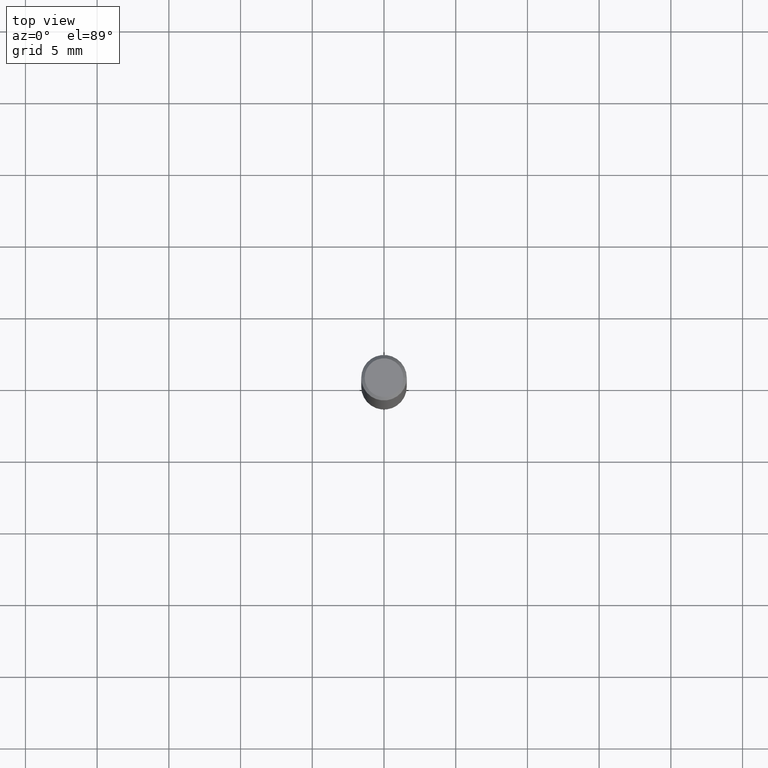
[diagram: clean part render]
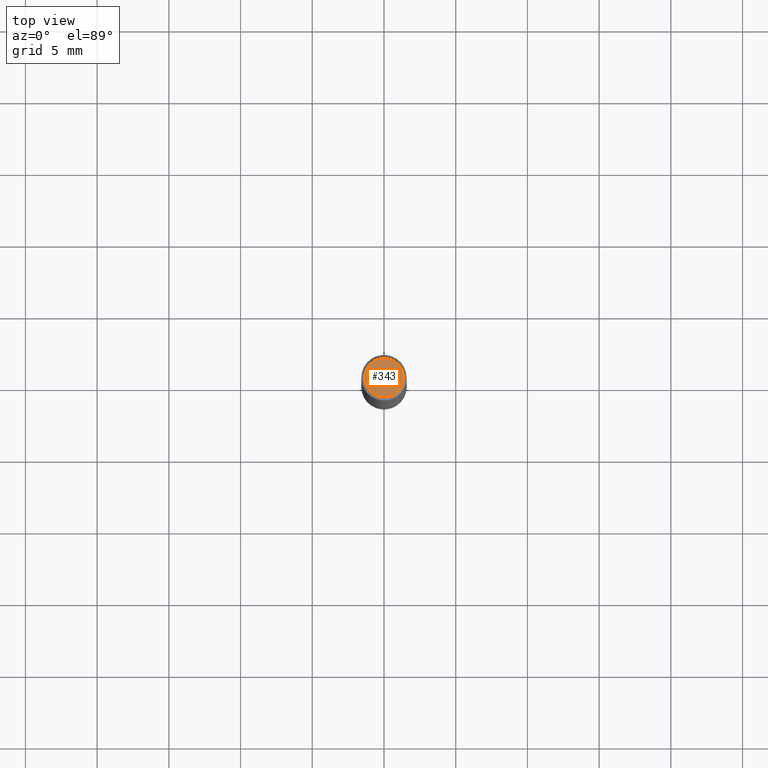
[diagram: same view with one face highlighted and labeled with its STEP entity id]
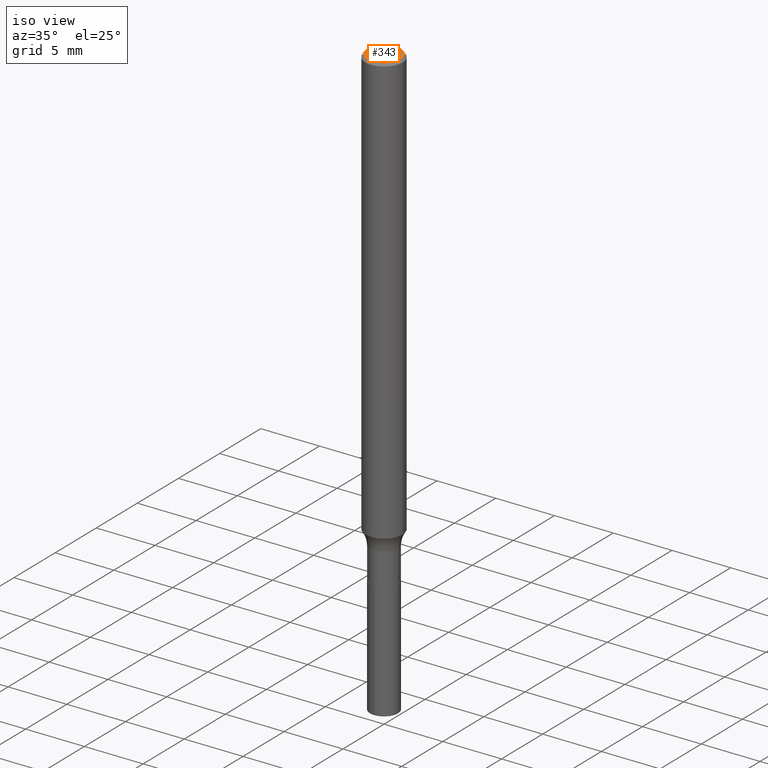
[diagram: same view with one face highlighted and labeled with its STEP entity id]
A machine part, top view. The second image highlights one B-rep face of the part: STEP entity #343.
A second angle (iso view) of the same face is appended — the face is thin or edge-on in the first view.
In plain terms, the highlighted planar face has unit normal (0, -0, -1).
Its self-contained STEP definition (entity closure, byte-faithful):
#27 = CIRCLE ( 'NONE', #78, 0.05312499999999999861 ) ;
#30 = VERTEX_POINT ( 'NONE', #256 ) ;
#36 = FACE_OUTER_BOUND ( 'NONE', #277, .T. ) ;
#50 = DIRECTION ( 'NONE',  ( -2.445468806185136597E-29, 3.491481338843145583E-15, 1.000000000000000000 ) ) ;
#78 = AXIS2_PLACEMENT_3D ( 'NONE', #79, #50, #308 ) ;
#79 = CARTESIAN_POINT ( 'NONE',  ( -8.782355238379108562E-48, 1.253887571509288664E-33, 3.591276738499616421E-19 ) ) ;
#99 = DIRECTION ( 'NONE',  ( 1.000000000000000000, -6.982962677686266711E-15, 4.876153107228683844E-29 ) ) ;
#106 = CIRCLE ( 'NONE', #446, 0.05312499999999999861 ) ;
#109 = PLANE ( 'NONE',  #232 ) ;
#127 = VERTEX_POINT ( 'NONE', #239 ) ;
#128 = ORIENTED_EDGE ( 'NONE', *, *, #349, .T. ) ;
#144 = CARTESIAN_POINT ( 'NONE',  ( -8.782355238379108562E-48, 1.253887571509288664E-33, 3.591276738499616421E-19 ) ) ;
#211 = CARTESIAN_POINT ( 'NONE',  ( -4.391177619189554281E-48, 6.269437857546443321E-34, 1.795638369249808211E-19 ) ) ;
#223 = EDGE_CURVE ( 'NONE', #127, #30, #27, .T. ) ;
#232 = AXIS2_PLACEMENT_3D ( 'NONE', #211, #286, #377 ) ;
#239 = CARTESIAN_POINT ( 'NONE',  ( 0.05312499999999999861, -4.129888592719939842E-16, 3.591276738527027701E-19 ) ) ;
#256 = CARTESIAN_POINT ( 'NONE',  ( -0.05312499999999999861, 3.873362110279099094E-16, 3.591276738473101181E-19 ) ) ;
#275 = ORIENTED_EDGE ( 'NONE', *, *, #223, .T. ) ;
#277 = EDGE_LOOP ( 'NONE', ( #128, #275 ) ) ;
#286 = DIRECTION ( 'NONE',  ( 2.438088387897960049E-29, -3.491481338843145188E-15, -1.000000000000000000 ) ) ;
#308 = DIRECTION ( 'NONE',  ( 1.000000000000000000, -6.982962677686266711E-15, 4.876153107228683844E-29 ) ) ;
#343 = ADVANCED_FACE ( 'NONE', ( #36 ), #109, .F. ) ;
#349 = EDGE_CURVE ( 'NONE', #30, #127, #106, .T. ) ;
#377 = DIRECTION ( 'NONE',  ( -1.000000000000000000, 6.982962677686265922E-15, -4.876176775795935793E-29 ) ) ;
#446 = AXIS2_PLACEMENT_3D ( 'NONE', #144, #454, #99 ) ;
#454 = DIRECTION ( 'NONE',  ( -2.445468806185136597E-29, 3.491481338843145583E-15, 1.000000000000000000 ) ) ;